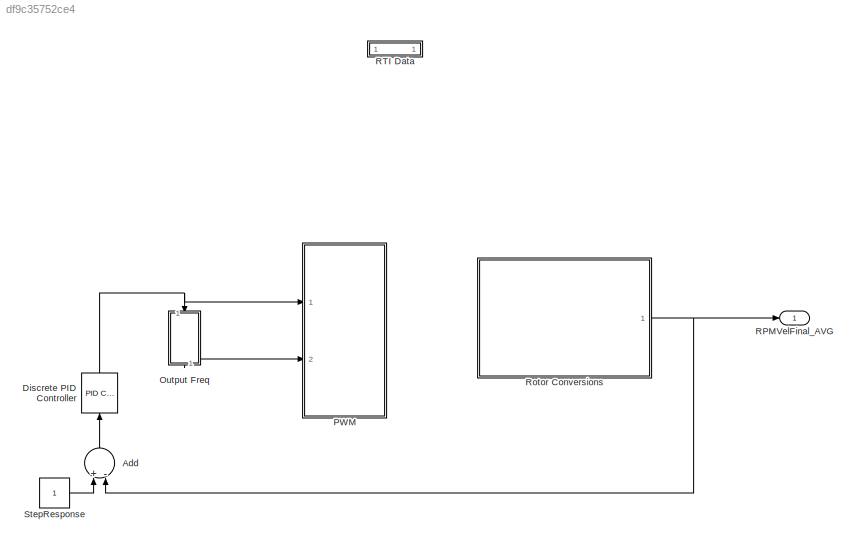
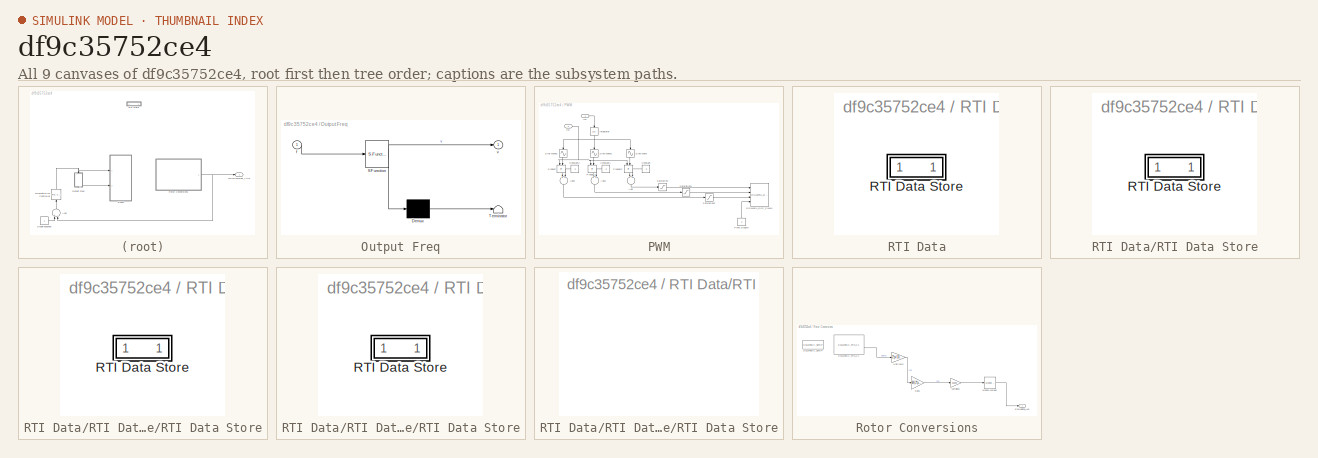
[diagram: thumbnail index - all 9 canvases of the model, root first then tree order]
MODEL slx_df9c35752ce4
KIND model
CONFIG AbsTol = auto
CONFIG EnableMultiTasking = off
CONFIG FixedStep = 0.0001
CONFIG MaxStep = auto
CONFIG MinStep = auto
CONFIG PostLoadFcn = , if any(exist('dsrtsu_mdlpostloadfcn', 'file') == [2, 3, 6]), try dsrtsu_mdlpostloadfcn('Execute', bdroot); catch fprintf('Error in PostLoadFcn (dsrtsu_mdlpostloadfcn) for model "%s":\n %s\n', bdroot, lasterr); end, end, \n
CONFIG RelTol = 1e-3
CONFIG SampleTimeConstraint = Unconstrained
CONFIG Solver = ode1
CONFIG SolverName = ode1
CONFIG StartTime = 0.0
CONFIG StopTime = inf
BLOCK [Sum] Add
  InputSameDT = off
  Inputs = +-
  OutDataTypeStr = Inherit: Inherit via internal rule
  Ports = [2, 1]
  SaturateOnIntegerOverflow = off
BLOCK [Reference] Discrete PID Controller  REF=simulink/Continuous/PID Controller
  Ports = [1, 1]
  SourceBlock = simulink/Continuous/PID Controller
  SourceProductBaseCode = SL
  SourceProductName = Simulink
  SourceType = PID 1dof
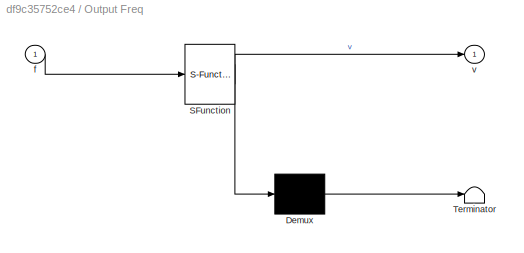
BLOCK [SubSystem] Output Freq
  ErrorFcn = Stateflow.Translate.translate
  PermitHierarchicalResolution = ExplicitOnly
  Ports = [1, 1]
  RequestExecContextInheritance = off
  SFBlockType = MATLAB Function
  TreatAsAtomicUnit = on
  Variant = off
BLOCK [Demux] Output Freq/ Demux 
  Outputs = 1
  Ports = [1, 1]
BLOCK [S-Function] Output Freq/ SFunction 
  EnableBusSupport = on
  FunctionName = sf_sfun
  PortCounts = [1 2]
  Ports = [1, 2]
  SFcnIsStateOwnerBlock = off
  SFunctionDeploymentMode = off
  Tag = Stateflow S-Function Lab6 2
BLOCK [Terminator] Output Freq/ Terminator 
BLOCK [Inport] Output Freq/f
  IconDisplay = Port number
BLOCK [Outport] Output Freq/v
  IconDisplay = Port number
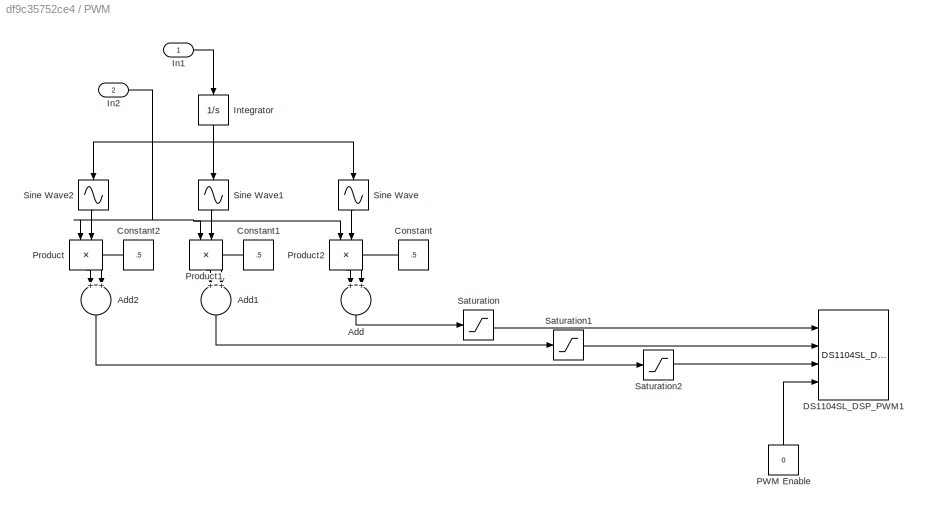
BLOCK [SubSystem] PWM
  Ports = [2]
  RequestExecContextInheritance = off
  Variant = off
BLOCK [Sum] PWM/Add
  InputSameDT = off
  OutDataTypeStr = Inherit: Inherit via internal rule
  Ports = [2, 1]
  SaturateOnIntegerOverflow = off
BLOCK [Sum] PWM/Add1
  InputSameDT = off
  OutDataTypeStr = Inherit: Inherit via internal rule
  Ports = [2, 1]
  SaturateOnIntegerOverflow = off
BLOCK [Sum] PWM/Add2
  InputSameDT = off
  OutDataTypeStr = Inherit: Inherit via internal rule
  Ports = [2, 1]
  SaturateOnIntegerOverflow = off
BLOCK [Constant] PWM/Constant
  Value = .5
BLOCK [Constant] PWM/Constant1
  Value = .5
BLOCK [Constant] PWM/Constant2
  Value = .5
BLOCK [Reference] PWM/DS1104SL_DSP_PWM1  REF=rtilib1104/DS1104 SLAVE DSP/DS1104SL_DSP_PWM3
  Ports = [4]
  SourceBlock = rtilib1104/DS1104 SLAVE DSP/DS1104SL_DSP_PWM3
  SourceProductName = dSPACE RTI1104
  SourceType = RTI
BLOCK [Inport] PWM/In1
  IconDisplay = Port number
BLOCK [Inport] PWM/In2
  IconDisplay = Port number
  Port = 2
BLOCK [Integrator] PWM/Integrator
  Ports = [1, 1]
BLOCK [Constant] PWM/PWM Enable
  Value = 0
BLOCK [Product] PWM/Product
  InputSameDT = off
  OutDataTypeStr = Inherit: Inherit via internal rule
  Ports = [2, 1]
  RndMeth = Floor
  SaturateOnIntegerOverflow = off
BLOCK [Product] PWM/Product1
  InputSameDT = off
  OutDataTypeStr = Inherit: Inherit via internal rule
  Ports = [2, 1]
  RndMeth = Floor
  SaturateOnIntegerOverflow = off
BLOCK [Product] PWM/Product2
  InputSameDT = off
  OutDataTypeStr = Inherit: Inherit via internal rule
  Ports = [2, 1]
  RndMeth = Floor
  SaturateOnIntegerOverflow = off
BLOCK [Saturate] PWM/Saturation
  InputPortMap = u0
  LowerLimit = 0
  Ports = [1, 1]
  UpperLimit = 1
BLOCK [Saturate] PWM/Saturation1
  InputPortMap = u0
  LowerLimit = 0
  Ports = [1, 1]
  UpperLimit = 1
BLOCK [Saturate] PWM/Saturation2
  InputPortMap = u0
  LowerLimit = 0
  Ports = [1, 1]
  UpperLimit = 1
BLOCK [Sin] PWM/Sine Wave
  Frequency = 2*pi
  Ports = [1, 1]
  SampleTime = 0
  TimeSource = Use external signal
BLOCK [Sin] PWM/Sine Wave1
  Frequency = 2*pi
  Phase = -2.0944
  Ports = [1, 1]
  SampleTime = 0
  TimeSource = Use external signal
BLOCK [Sin] PWM/Sine Wave2
  Frequency = 2*pi
  Phase = 2.0944
  Ports = [1, 1]
  SampleTime = 0
  TimeSource = Use external signal
BLOCK [Outport] RPMVelFinal_AVG
  IconDisplay = Port number
BLOCK [SubSystem] RTI Data
  CopyFcn = if exist('rtidc'), try,  rtidc('DataHostBlockClbCopy', gcbh); catch, disp(['Warning: ''CopyFcn'' for RTI Data block failed: ' lasterr]); end, end,
  DeleteFcn = if exist('rtidc'), try,  rtidc('DataHostBlockClbDelete', gcbh); catch, disp(['Warning: ''DeleteFcn'' for RTI Data block failed: ' lasterr]); end, end,
  LoadFcn = if exist('rtidc'), try,  rtidc('DataHostBlockClbLoad', gcbh); catch, disp(['Warning: ''LoadFcn'' for RTI Data block failed: ' lasterr]); end, end,
  ModelCloseFcn = if exist('rtidc'), try,  rtidc('DataHostBlockClbModelClose', gcbh); catch, disp(['Warning: ''ModelCloseFcn'' for RTI Data block failed: ' lasterr]); end, end,
  NameChangeFcn = if exist('rtidc'), try,  rtidc('DataHostBlockClbNameChange', gcbh); catch, disp(['Warning: ''NameChangeFcn'' for RTI Data block failed: ' lasterr]); end, end,
  Ports = []
  PostSaveFcn = if exist('rtidc'), try,  rtidc('DataHostBlockClbPostSave', gcbh); catch, disp(['Warning: ''PostSaveFcn'' for RTI Data block failed: ' lasterr]); end, end,
  PreSaveFcn = if exist('rtidc'), try,  rtidc('DataHostBlockClbPreSave', gcbh); catch, disp(['Warning: ''PreSaveFcn'' for RTI Data block failed: ' lasterr]); end, end,
  RequestExecContextInheritance = off
  Tag = struct('RTIDataServer',struct('RTIDataServerVs','2','RTIModelDescription','struct(''main'',''Lab6'',''sub'','''',''isMp'',0)'))
  Variant = off
BLOCK [SubSystem] RTI Data/RTI Data Store
  Ports = []
  RequestExecContextInheritance = off
  Tag = struct('private',struct('version',struct('dsVer',uint32(2),'dsVerCreation',uint32(2),'RTI',struct('ver','7.9','type','RTI1104')),'access',struct('type','Model','isPerm',1,'created',['21-Feb-2020 12:21:28'],'modified',['06-Mar-2020 13:51:54'],'location','')),'public',struct('main',struct('data',[]),'sub',struct('name',{{'Lab6'}},'data',{{struct('TH',struct('thTaskInfo',struct('taskType',{'TIMER','H...<+885ch>
  Variant = off
BLOCK [SubSystem] RTI Data/RTI Data Store/RTI Data Store
  Ports = []
  RequestExecContextInheritance = off
  Variant = off
BLOCK [SubSystem] RTI Data/RTI Data Store/RTI Data Store/RTI Data Store
  Ports = []
  RequestExecContextInheritance = off
  Variant = off
BLOCK [SubSystem] RTI Data/RTI Data Store/RTI Data Store/RTI Data Store/RTI Data Store
  Ports = []
  RequestExecContextInheritance = off
  Variant = off
BLOCK [SubSystem] Rotor Conversions
  Ports = [0, 1]
  RequestExecContextInheritance = off
  Variant = off
BLOCK [Reference] Rotor Conversions/DS1104ENC_POS_C1  REF=rtilib1104/DS1104 MASTER PPC/DS1104ENC_POS_C1
  Ports = [0, 2]
  SourceBlock = rtilib1104/DS1104 MASTER PPC/DS1104ENC_POS_C1
  SourceProductName = dSPACE RTI1104
  SourceType = RTI
BLOCK [Reference] Rotor Conversions/DS1104ENC_SETUP  REF=rtilib1104/DS1104 MASTER PPC/DS1104ENC_SETUP
  Ports = []
  SourceBlock = rtilib1104/DS1104 MASTER PPC/DS1104ENC_SETUP
  SourceProductName = dSPACE RTI1104
  SourceType = RTI
BLOCK [Gain] Rotor Conversions/Gain1
  Gain = 60/(2*pi)
  OutDataTypeStr = Inherit: Inherit via internal rule
  ParamDataTypeStr = Inherit: Inherit via internal rule
  SaturateOnIntegerOverflow = off
BLOCK [Reference] Rotor Conversions/Moving Average  REF=dspstat3/Moving
Average
  Ports = [1, 1]
  SourceBlock = dspstat3/Moving\nAverage
  SourceProductBaseCode = DS
  SourceProductName = DSP System Toolbox
  SourceType = dsp.MovingAverage
BLOCK [Outport] Rotor Conversions/RPMVelFinal_AVG
  IconDisplay = Port number
BLOCK [Gain] Rotor Conversions/UnitConv2
  Gain = 2*pi/1000
  OutDataTypeStr = Inherit: Inherit via internal rule
  ParamDataTypeStr = Inherit: Inherit via internal rule
  SaturateOnIntegerOverflow = off
BLOCK [Gain] Rotor Conversions/sampling1
  Gain = 10000
  OutDataTypeStr = Inherit: Inherit via internal rule
  ParamDataTypeStr = Inherit: Inherit via internal rule
  SaturateOnIntegerOverflow = off
BLOCK [Constant] StepResponse
LINE Add:1 -> Discrete PID Controller:1
NET Discrete PID Controller:1 -> Output Freq:1, PWM:1
LINE Output Freq:1 -> PWM:2
LINE PWM/Add1:1 -> PWM/Saturation1:1
LINE PWM/Add2:1 -> PWM/Saturation2:1
LINE PWM/Add:1 -> PWM/Saturation:1
LINE PWM/Constant1:1 -> PWM/Add1:2
LINE PWM/Constant2:1 -> PWM/Add2:2
LINE PWM/Constant:1 -> PWM/Add:2
LINE PWM/In1:1 -> PWM/Integrator:1
NET PWM/In2:1 -> PWM/Product1:1, PWM/Product2:1, PWM/Product:1
NET PWM/Integrator:1 -> PWM/Sine Wave1:1, PWM/Sine Wave2:1, PWM/Sine Wave:1
LINE PWM/PWM Enable:1 -> PWM/DS1104SL_DSP_PWM1:4
LINE PWM/Product1:1 -> PWM/Add1:1
LINE PWM/Product2:1 -> PWM/Add:1
LINE PWM/Product:1 -> PWM/Add2:1
LINE PWM/Saturation1:1 -> PWM/DS1104SL_DSP_PWM1:2
LINE PWM/Saturation2:1 -> PWM/DS1104SL_DSP_PWM1:3
LINE PWM/Saturation:1 -> PWM/DS1104SL_DSP_PWM1:1
LINE PWM/Sine Wave1:1 -> PWM/Product1:2
LINE PWM/Sine Wave2:1 -> PWM/Product:2
LINE PWM/Sine Wave:1 -> PWM/Product2:2
LINE Rotor Conversions/DS1104ENC_POS_C1:2 -> Rotor Conversions/UnitConv2:1
LINE Rotor Conversions/Gain1:1 -> Rotor Conversions/sampling1:1
LINE Rotor Conversions/Moving Average:1 -> Rotor Conversions/RPMVelFinal_AVG:1
LINE Rotor Conversions/UnitConv2:1 -> Rotor Conversions/Gain1:1
LINE Rotor Conversions/sampling1:1 -> Rotor Conversions/Moving Average:1
NET Rotor Conversions:1 -> Add:2, RPMVelFinal_AVG:1
LINE StepResponse:1 -> Add:1
note: NET lines group one-source signal fan-out (src -> all destinations, sorted); 1:1 wires keep LINE
CHART Output Freq states=1 transitions=1
  STATE_LABEL 'eML_blk_kernel()'
  STATE_LABEL 'SCRIPT:\nfunction v = fcn(f)\n\nv = (f*.15)/42;\n\nend'
